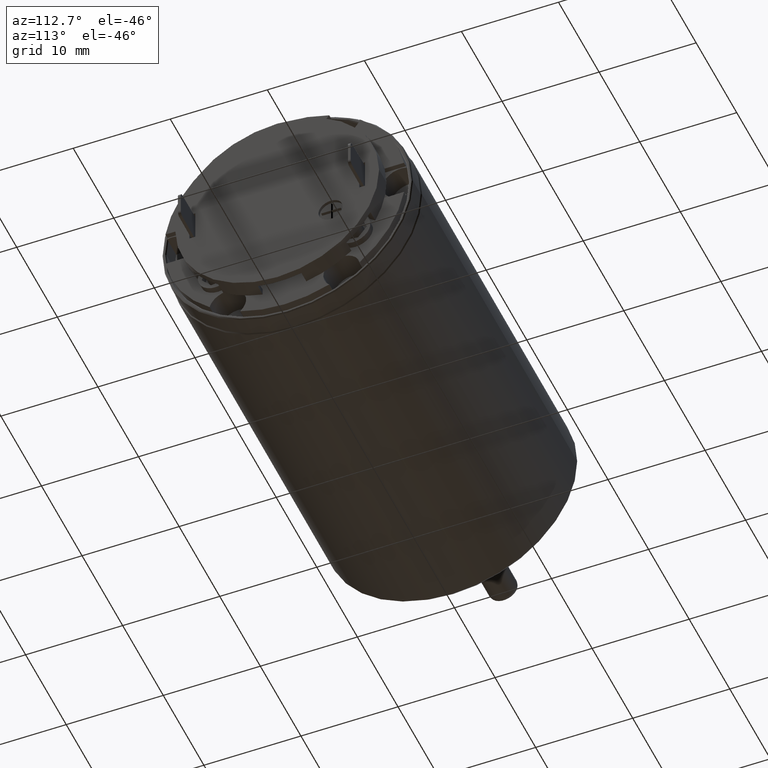
[diagram: clean part render]
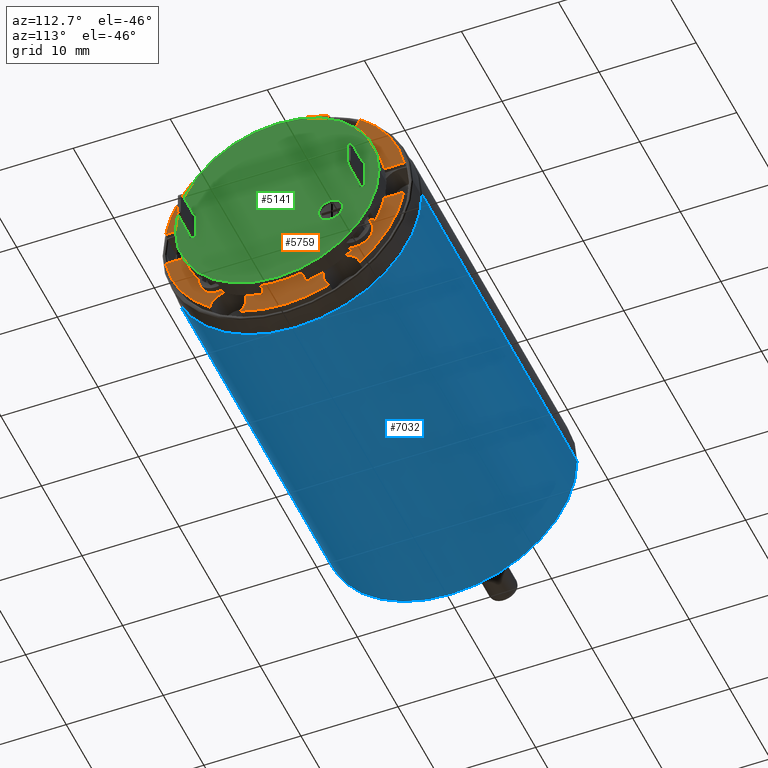
[diagram: same view with three faces highlighted in distinct colors, each labeled with its STEP entity id]
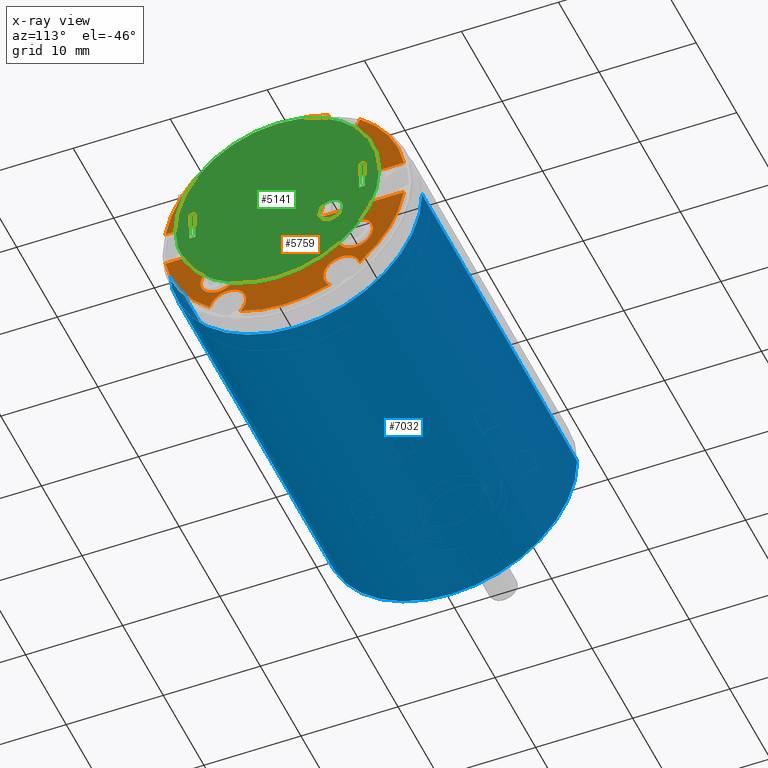
[diagram: x-ray of the same camera — body ghosted, the three highlighted faces saturated]
A machine part, auxiliary view with three faces highlighted in distinct colors.
The next image is the same camera in x-ray (body ghosted, the three faces saturated) — at least one of them is partly hidden behind the body in this view.
Their STEP definitions:

[orange] entity #5759 — the highlighted planar face has unit normal (1, 0, 0).
#881=CARTESIAN_POINT('',(2.180271496615E1,5.875E0,1.017579849447E1));
#882=DIRECTION('',(1.E0,0.E0,0.E0));
#883=DIRECTION('',(0.E0,-6.772588906651E-1,7.357447893224E-1));
#884=AXIS2_PLACEMENT_3D('',#881,#882,#883);
#886=CARTESIAN_POINT('',(2.180271496615E1,5.875E0,1.017579849447E1));
#887=DIRECTION('',(1.E0,0.E0,0.E0));
#888=DIRECTION('',(0.E0,8.660254037837E-1,-5.000000000013E-1));
#889=AXIS2_PLACEMENT_3D('',#886,#887,#888);
#891=CARTESIAN_POINT('',(2.180271496615E1,0.E0,0.E0));
#892=DIRECTION('',(-1.E0,0.E0,0.E0));
#893=DIRECTION('',(0.E0,6.208052959691E-1,7.839647852402E-1));
#894=AXIS2_PLACEMENT_3D('',#891,#892,#893);
#896=CARTESIAN_POINT('',(2.180271496615E1,0.E0,0.E0));
#897=DIRECTION('',(-1.E0,0.E0,0.E0));
#898=DIRECTION('',(0.E0,8.660254037845E-1,5.E-1));
#899=AXIS2_PLACEMENT_3D('',#896,#897,#898);
#901=DIRECTION('',(0.E0,1.E0,1.416684004250E-14));
#902=VECTOR('',#901,8.824205835442E0);
#903=CARTESIAN_POINT('',(2.180271496615E1,3.464101615138E0,-2.E0));
#904=LINE('',#903,#902);
#905=CARTESIAN_POINT('',(2.180271496615E1,0.E0,0.E0));
#906=DIRECTION('',(-1.E0,0.E0,0.E0));
#907=DIRECTION('',(0.E0,9.870126466330E-1,-1.606425702811E-1));
#908=AXIS2_PLACEMENT_3D('',#905,#906,#907);
#910=CARTESIAN_POINT('',(2.180271496615E1,5.875E0,-1.017579849447E1));
#911=DIRECTION('',(1.E0,0.E0,0.E0));
#912=DIRECTION('',(0.E0,9.758031235875E-1,2.186510095950E-1));
#913=AXIS2_PLACEMENT_3D('',#910,#911,#912);
#915=CARTESIAN_POINT('',(2.180271496615E1,5.875E0,-1.017579849447E1));
#916=DIRECTION('',(1.E0,0.E0,0.E0));
#917=DIRECTION('',(0.E0,-8.660254037844E-1,-5.000000000001E-1));
#918=AXIS2_PLACEMENT_3D('',#915,#916,#917);
#920=CARTESIAN_POINT('',(2.180271496615E1,0.E0,0.E0));
#921=DIRECTION('',(-1.E0,0.E0,0.E0));
#922=DIRECTION('',(0.E0,3.685307717057E-1,-9.296155497333E-1));
#923=AXIS2_PLACEMENT_3D('',#920,#921,#922);
#925=CARTESIAN_POINT('',(2.180271496615E1,-5.875E0,-1.017579849447E1));
#926=DIRECTION('',(1.E0,0.E0,0.E0));
#927=DIRECTION('',(0.E0,6.772588906658E-1,-7.357447893217E-1));
#928=AXIS2_PLACEMENT_3D('',#925,#926,#927);
#930=CARTESIAN_POINT('',(2.180271496615E1,-5.875E0,-1.017579849447E1));
#931=DIRECTION('',(1.E0,0.E0,0.E0));
#932=DIRECTION('',(0.E0,-8.660254037837E-1,5.000000000013E-1));
#933=AXIS2_PLACEMENT_3D('',#930,#931,#932);
#935=CARTESIAN_POINT('',(2.180271496615E1,0.E0,0.E0));
#936=DIRECTION('',(-1.E0,0.E0,0.E0));
#937=DIRECTION('',(0.E0,-6.208052959691E-1,-7.839647852402E-1));
#938=AXIS2_PLACEMENT_3D('',#935,#936,#937);
#940=CARTESIAN_POINT('',(2.180271496615E1,0.E0,0.E0));
#941=DIRECTION('',(-1.E0,0.E0,0.E0));
#942=DIRECTION('',(0.E0,-8.660254037845E-1,-5.E-1));
#943=AXIS2_PLACEMENT_3D('',#940,#941,#942);
#945=CARTESIAN_POINT('',(2.180271496615E1,0.E0,0.E0));
#946=DIRECTION('',(-1.E0,0.E0,0.E0));
#947=DIRECTION('',(0.E0,-1.E0,0.E0));
#948=AXIS2_PLACEMENT_3D('',#945,#946,#947);
#950=CARTESIAN_POINT('',(2.180271496615E1,0.E0,0.E0));
#951=DIRECTION('',(-1.E0,0.E0,0.E0));
#952=DIRECTION('',(0.E0,-9.870126466330E-1,1.606425702811E-1));
#953=AXIS2_PLACEMENT_3D('',#950,#951,#952);
#955=CARTESIAN_POINT('',(2.180271496615E1,-5.875E0,1.017579849447E1));
#956=DIRECTION('',(1.E0,0.E0,0.E0));
#957=DIRECTION('',(0.E0,-9.758031235875E-1,-2.186510095950E-1));
#958=AXIS2_PLACEMENT_3D('',#955,#956,#957);
#960=CARTESIAN_POINT('',(2.180271496615E1,-5.875E0,1.017579849447E1));
#961=DIRECTION('',(1.E0,0.E0,0.E0));
#962=DIRECTION('',(0.E0,8.660254037844E-1,5.000000000001E-1));
#963=AXIS2_PLACEMENT_3D('',#960,#961,#962);
#965=CARTESIAN_POINT('',(2.180271496615E1,0.E0,0.E0));
#966=DIRECTION('',(-1.E0,0.E0,0.E0));
#967=DIRECTION('',(0.E0,-3.685307717057E-1,9.296155497333E-1));
#968=AXIS2_PLACEMENT_3D('',#965,#966,#967);
#970=CARTESIAN_POINT('',(2.180271496615E1,7.29E0,-5.7E0));
#971=DIRECTION('',(1.E0,0.E0,0.E0));
#972=DIRECTION('',(0.E0,0.E0,-1.E0));
#973=AXIS2_PLACEMENT_3D('',#970,#971,#972);
#975=CARTESIAN_POINT('',(2.180271496615E1,7.29E0,-5.7E0));
#976=DIRECTION('',(1.E0,0.E0,0.E0));
#977=DIRECTION('',(0.E0,0.E0,1.E0));
#978=AXIS2_PLACEMENT_3D('',#975,#976,#977);
#980=CARTESIAN_POINT('',(2.180271496615E1,-6.87E0,-6.19E0));
#981=DIRECTION('',(1.E0,0.E0,0.E0));
#982=DIRECTION('',(0.E0,0.E0,-1.E0));
#983=AXIS2_PLACEMENT_3D('',#980,#981,#982);
#985=CARTESIAN_POINT('',(2.180271496615E1,-6.87E0,-6.19E0));
#986=DIRECTION('',(1.E0,0.E0,0.E0));
#987=DIRECTION('',(0.E0,0.E0,1.E0));
#988=AXIS2_PLACEMENT_3D('',#985,#986,#987);
#990=CARTESIAN_POINT('',(2.180271496615E1,-7.29E0,5.7E0));
#991=DIRECTION('',(1.E0,0.E0,0.E0));
#992=DIRECTION('',(0.E0,0.E0,-1.E0));
#993=AXIS2_PLACEMENT_3D('',#990,#991,#992);
#995=CARTESIAN_POINT('',(2.180271496615E1,-7.29E0,5.7E0));
#996=DIRECTION('',(1.E0,0.E0,0.E0));
#997=DIRECTION('',(0.E0,0.E0,1.E0));
#998=AXIS2_PLACEMENT_3D('',#995,#996,#997);
#1000=CARTESIAN_POINT('',(2.180271496615E1,6.87E0,6.19E0));
#1001=DIRECTION('',(1.E0,0.E0,0.E0));
#1002=DIRECTION('',(0.E0,0.E0,-1.E0));
#1003=AXIS2_PLACEMENT_3D('',#1000,#1001,#1002);
#1005=CARTESIAN_POINT('',(2.180271496615E1,6.87E0,6.19E0));
#1006=DIRECTION('',(1.E0,0.E0,0.E0));
#1007=DIRECTION('',(0.E0,0.E0,1.E0));
#1008=AXIS2_PLACEMENT_3D('',#1005,#1006,#1007);
#1010=CARTESIAN_POINT('',(2.180271496615E1,5.E0,3.3E0));
#1011=DIRECTION('',(1.E0,0.E0,0.E0));
#1012=DIRECTION('',(0.E0,0.E0,-1.E0));
#1013=AXIS2_PLACEMENT_3D('',#1010,#1011,#1012);
#1015=CARTESIAN_POINT('',(2.180271496615E1,5.E0,3.3E0));
#1016=DIRECTION('',(1.E0,0.E0,0.E0));
#1017=DIRECTION('',(0.E0,0.E0,1.E0));
#1018=AXIS2_PLACEMENT_3D('',#1015,#1016,#1017);
#1020=CARTESIAN_POINT('',(2.180271496615E1,0.E0,0.E0));
#1021=DIRECTION('',(-1.E0,0.E0,0.E0));
#1022=DIRECTION('',(0.E0,1.E0,0.E0));
#1023=AXIS2_PLACEMENT_3D('',#1020,#1021,#1022);
#1025=CARTESIAN_POINT('',(2.180271496615E1,0.E0,0.E0));
#1026=DIRECTION('',(-1.E0,0.E0,0.E0));
#1027=DIRECTION('',(0.E0,-1.E0,0.E0));
#1028=AXIS2_PLACEMENT_3D('',#1025,#1026,#1027);
#1392=DIRECTION('',(0.E0,1.E0,0.E0));
#1393=VECTOR('',#1392,8.824205835442E0);
#1394=CARTESIAN_POINT('',(2.180271496615E1,-1.228830745058E1,2.E0));
#1395=LINE('',#1394,#1393);
#1412=DIRECTION('',(0.E0,-1.E0,0.E0));
#1413=VECTOR('',#1412,8.824205835443E0);
#1414=CARTESIAN_POINT('',(2.180271496615E1,-3.464101615138E0,-2.E0));
#1415=LINE('',#1414,#1413);
#1600=DIRECTION('',(0.E0,1.E0,0.E0));
#1601=VECTOR('',#1600,8.824205835443E0);
#1602=CARTESIAN_POINT('',(2.180271496615E1,3.464101615138E0,2.E0));
#1603=LINE('',#1602,#1601);
#3782=CARTESIAN_POINT('',(2.180271496615E1,-1.228830745058E1,-2.E0));
#3783=VERTEX_POINT('',#3782);
#3784=CARTESIAN_POINT('',(2.180271496615E1,-7.729025934815E0,
-9.760361576240E0));
#3785=VERTEX_POINT('',#3784);
#3794=CARTESIAN_POINT('',(2.180271496615E1,-4.588208107736E0,
-1.157371359418E1));
#3795=VERTEX_POINT('',#3794);
#3796=CARTESIAN_POINT('',(2.180271496615E1,4.588208107735E0,-1.157371359418E1));
#3797=VERTEX_POINT('',#3796);
#3806=CARTESIAN_POINT('',(2.180271496615E1,7.729025934817E0,-9.760361576240E0));
#3807=VERTEX_POINT('',#3806);
#3808=CARTESIAN_POINT('',(2.180271496615E1,1.228830745058E1,-2.E0));
#3809=VERTEX_POINT('',#3808);
#3854=CARTESIAN_POINT('',(2.180271496615E1,1.228830745058E1,2.E0));
#3855=VERTEX_POINT('',#3854);
#3856=CARTESIAN_POINT('',(2.180271496615E1,7.729025934815E0,9.760361576240E0));
#3857=VERTEX_POINT('',#3856);
#3866=CARTESIAN_POINT('',(2.180271496615E1,4.588208107736E0,1.157371359418E1));
#3867=VERTEX_POINT('',#3866);
#3868=CARTESIAN_POINT('',(2.180271496615E1,-4.588208107735E0,1.157371359418E1));
#3869=VERTEX_POINT('',#3868);
#3878=CARTESIAN_POINT('',(2.180271496615E1,-7.729025934817E0,9.760361576240E0));
#3879=VERTEX_POINT('',#3878);
#3880=CARTESIAN_POINT('',(2.180271496615E1,-1.228830745058E1,2.E0));
#3881=VERTEX_POINT('',#3880);
#3932=CARTESIAN_POINT('',(2.180271496615E1,6.87E0,4.39E0));
#3933=CARTESIAN_POINT('',(2.180271496615E1,6.87E0,7.99E0));
#3934=VERTEX_POINT('',#3932);
#3935=VERTEX_POINT('',#3933);
#3936=CARTESIAN_POINT('',(2.180271496615E1,7.29E0,-7.5E0));
#3937=CARTESIAN_POINT('',(2.180271496615E1,7.29E0,-3.9E0));
#3938=VERTEX_POINT('',#3936);
#3939=VERTEX_POINT('',#3937);
#3940=CARTESIAN_POINT('',(2.180271496615E1,-6.87E0,-7.99E0));
#3941=CARTESIAN_POINT('',(2.180271496615E1,-6.87E0,-4.39E0));
#3942=VERTEX_POINT('',#3940);
#3943=VERTEX_POINT('',#3941);
#3944=CARTESIAN_POINT('',(2.180271496615E1,-7.29E0,3.9E0));
#3945=CARTESIAN_POINT('',(2.180271496615E1,-7.29E0,7.5E0));
#3946=VERTEX_POINT('',#3944);
#3947=VERTEX_POINT('',#3945);
#3948=CARTESIAN_POINT('',(2.180271496615E1,7.520448267190E0,9.225798494467E0));
#3949=VERTEX_POINT('',#3948);
#3950=CARTESIAN_POINT('',(2.180271496615E1,3.464101615138E0,2.E0));
#3951=VERTEX_POINT('',#3950);
#3952=CARTESIAN_POINT('',(2.180271496615E1,3.464101615138E0,-2.E0));
#3953=VERTEX_POINT('',#3952);
#3954=CARTESIAN_POINT('',(2.180271496615E1,4.229551732810E0,-1.112579849447E1));
#3955=VERTEX_POINT('',#3954);
#3956=CARTESIAN_POINT('',(2.180271496615E1,-7.520448267190E0,
-9.225798494467E0));
#3957=VERTEX_POINT('',#3956);
#3958=CARTESIAN_POINT('',(2.180271496615E1,-3.464101615138E0,-2.E0));
#3959=VERTEX_POINT('',#3958);
#3960=CARTESIAN_POINT('',(2.180271496615E1,-4.E0,0.E0));
#3961=VERTEX_POINT('',#3960);
#3962=CARTESIAN_POINT('',(2.180271496615E1,-3.464101615138E0,2.E0));
#3963=VERTEX_POINT('',#3962);
#3964=CARTESIAN_POINT('',(2.180271496615E1,-4.229551732810E0,1.112579849447E1));
#3965=VERTEX_POINT('',#3964);
#3966=CARTESIAN_POINT('',(2.180271496615E1,5.E0,2.3E0));
#3967=CARTESIAN_POINT('',(2.180271496615E1,5.E0,4.3E0));
#3968=VERTEX_POINT('',#3966);
#3969=VERTEX_POINT('',#3967);
#4510=CARTESIAN_POINT('',(2.180271496615E1,3.9E0,0.E0));
#4511=CARTESIAN_POINT('',(2.180271496615E1,-3.9E0,0.E0));
#4512=VERTEX_POINT('',#4510);
#4513=VERTEX_POINT('',#4511);
#5675=CARTESIAN_POINT('',(2.180271496615E1,1.598721155460E-14,0.E0));
#5676=DIRECTION('',(1.E0,0.E0,0.E0));
#5677=DIRECTION('',(0.E0,1.E0,0.E0));
#5678=AXIS2_PLACEMENT_3D('',#5675,#5676,#5677);
#5679=PLANE('',#5678);
#5681=ORIENTED_EDGE('',*,*,#5680,.T.);
#5683=ORIENTED_EDGE('',*,*,#5682,.T.);
#5685=ORIENTED_EDGE('',*,*,#5684,.T.);
#5687=ORIENTED_EDGE('',*,*,#5686,.F.);
#5689=ORIENTED_EDGE('',*,*,#5688,.T.);
#5691=ORIENTED_EDGE('',*,*,#5690,.T.);
#5693=ORIENTED_EDGE('',*,*,#5692,.T.);
#5695=ORIENTED_EDGE('',*,*,#5694,.T.);
#5697=ORIENTED_EDGE('',*,*,#5696,.T.);
#5699=ORIENTED_EDGE('',*,*,#5698,.T.);
#5701=ORIENTED_EDGE('',*,*,#5700,.T.);
#5703=ORIENTED_EDGE('',*,*,#5702,.T.);
#5705=ORIENTED_EDGE('',*,*,#5704,.T.);
#5707=ORIENTED_EDGE('',*,*,#5706,.F.);
#5709=ORIENTED_EDGE('',*,*,#5708,.T.);
#5711=ORIENTED_EDGE('',*,*,#5710,.T.);
#5713=ORIENTED_EDGE('',*,*,#5712,.F.);
#5715=ORIENTED_EDGE('',*,*,#5714,.T.);
#5717=ORIENTED_EDGE('',*,*,#5716,.T.);
#5719=ORIENTED_EDGE('',*,*,#5718,.T.);
#5721=ORIENTED_EDGE('',*,*,#5720,.T.);
#5722=EDGE_LOOP('',(#5681,#5683,#5685,#5687,#5689,#5691,#5693,#5695,#5697,#5699,
#5701,#5703,#5705,#5707,#5709,#5711,#5713,#5715,#5717,#5719,#5721));
#5723=FACE_OUTER_BOUND('',#5722,.F.);
#5725=ORIENTED_EDGE('',*,*,#5724,.T.);
#5727=ORIENTED_EDGE('',*,*,#5726,.T.);
#5728=EDGE_LOOP('',(#5725,#5727));
#5729=FACE_BOUND('',#5728,.F.);
#5731=ORIENTED_EDGE('',*,*,#5730,.T.);
#5733=ORIENTED_EDGE('',*,*,#5732,.T.);
#5734=EDGE_LOOP('',(#5731,#5733));
#5735=FACE_BOUND('',#5734,.F.);
#5737=ORIENTED_EDGE('',*,*,#5736,.T.);
#5739=ORIENTED_EDGE('',*,*,#5738,.T.);
#5740=EDGE_LOOP('',(#5737,#5739));
#5741=FACE_BOUND('',#5740,.F.);
#5743=ORIENTED_EDGE('',*,*,#5742,.T.);
#5745=ORIENTED_EDGE('',*,*,#5744,.T.);
#5746=EDGE_LOOP('',(#5743,#5745));
#5747=FACE_BOUND('',#5746,.F.);
#5749=ORIENTED_EDGE('',*,*,#5748,.T.);
#5751=ORIENTED_EDGE('',*,*,#5750,.T.);
#5752=EDGE_LOOP('',(#5749,#5751));
#5753=FACE_BOUND('',#5752,.F.);
#5755=ORIENTED_EDGE('',*,*,#5754,.F.);
#5756=ORIENTED_EDGE('',*,*,#5665,.F.);
#5757=EDGE_LOOP('',(#5755,#5756));
#5758=FACE_BOUND('',#5757,.F.);
#5759=ADVANCED_FACE('',(#5723,#5729,#5735,#5741,#5747,#5753,#5758),#5679,.T.);
#885=CIRCLE('',#884,1.900000000001E0);
#890=CIRCLE('',#889,1.900000000001E0);
#895=CIRCLE('',#894,1.245E1);
#900=CIRCLE('',#899,4.E0);
#909=CIRCLE('',#908,1.245E1);
#914=CIRCLE('',#913,1.9E0);
#919=CIRCLE('',#918,1.9E0);
#924=CIRCLE('',#923,1.245E1);
#929=CIRCLE('',#928,1.900000000001E0);
#934=CIRCLE('',#933,1.900000000001E0);
#939=CIRCLE('',#938,1.245E1);
#944=CIRCLE('',#943,4.E0);
#949=CIRCLE('',#948,4.E0);
#954=CIRCLE('',#953,1.245E1);
#959=CIRCLE('',#958,1.9E0);
#964=CIRCLE('',#963,1.9E0);
#969=CIRCLE('',#968,1.245E1);
#974=CIRCLE('',#973,1.8E0);
#979=CIRCLE('',#978,1.8E0);
#984=CIRCLE('',#983,1.8E0);
#989=CIRCLE('',#988,1.8E0);
#994=CIRCLE('',#993,1.8E0);
#999=CIRCLE('',#998,1.8E0);
#1004=CIRCLE('',#1003,1.8E0);
#1009=CIRCLE('',#1008,1.8E0);
#1014=CIRCLE('',#1013,1.E0);
#1019=CIRCLE('',#1018,1.E0);
#1024=CIRCLE('',#1023,3.9E0);
#1029=CIRCLE('',#1028,3.9E0);
#5665=EDGE_CURVE('',#4513,#4512,#1029,.T.);
#5680=EDGE_CURVE('',#3867,#3949,#885,.T.);
#5682=EDGE_CURVE('',#3949,#3857,#890,.T.);
#5684=EDGE_CURVE('',#3857,#3855,#895,.T.);
#5686=EDGE_CURVE('',#3951,#3855,#1603,.T.);
#5688=EDGE_CURVE('',#3951,#3953,#900,.T.);
#5690=EDGE_CURVE('',#3953,#3809,#904,.T.);
#5692=EDGE_CURVE('',#3809,#3807,#909,.T.);
#5694=EDGE_CURVE('',#3807,#3955,#914,.T.);
#5696=EDGE_CURVE('',#3955,#3797,#919,.T.);
#5698=EDGE_CURVE('',#3797,#3795,#924,.T.);
#5700=EDGE_CURVE('',#3795,#3957,#929,.T.);
#5702=EDGE_CURVE('',#3957,#3785,#934,.T.);
#5704=EDGE_CURVE('',#3785,#3783,#939,.T.);
#5706=EDGE_CURVE('',#3959,#3783,#1415,.T.);
#5708=EDGE_CURVE('',#3959,#3961,#944,.T.);
#5710=EDGE_CURVE('',#3961,#3963,#949,.T.);
#5712=EDGE_CURVE('',#3881,#3963,#1395,.T.);
#5714=EDGE_CURVE('',#3881,#3879,#954,.T.);
#5716=EDGE_CURVE('',#3879,#3965,#959,.T.);
#5718=EDGE_CURVE('',#3965,#3869,#964,.T.);
#5720=EDGE_CURVE('',#3869,#3867,#969,.T.);
#5724=EDGE_CURVE('',#3938,#3939,#974,.T.);
#5726=EDGE_CURVE('',#3939,#3938,#979,.T.);
#5730=EDGE_CURVE('',#3942,#3943,#984,.T.);
#5732=EDGE_CURVE('',#3943,#3942,#989,.T.);
#5736=EDGE_CURVE('',#3946,#3947,#994,.T.);
#5738=EDGE_CURVE('',#3947,#3946,#999,.T.);
#5742=EDGE_CURVE('',#3934,#3935,#1004,.T.);
#5744=EDGE_CURVE('',#3935,#3934,#1009,.T.);
#5748=EDGE_CURVE('',#3968,#3969,#1014,.T.);
#5750=EDGE_CURVE('',#3969,#3968,#1019,.T.);
#5754=EDGE_CURVE('',#4512,#4513,#1024,.T.);

[blue] entity #7032 — the highlighted cylindrical surface (partial cylindrical patch) has radius 13 mm, axis along (1, 0, 0).
#2031=CARTESIAN_POINT('',(1.905E1,0.E0,0.E0));
#2032=DIRECTION('',(1.E0,0.E0,0.E0));
#2033=DIRECTION('',(0.E0,-1.E0,0.E0));
#2034=AXIS2_PLACEMENT_3D('',#2031,#2032,#2033);
#2036=CARTESIAN_POINT('',(-1.915000171831E1,1.865174681370E-14,
-1.931788062848E-14));
#2037=DIRECTION('',(1.E0,0.E0,0.E0));
#2038=DIRECTION('',(0.E0,-1.E0,0.E0));
#2039=AXIS2_PLACEMENT_3D('',#2036,#2037,#2038);
#2041=CARTESIAN_POINT('',(-1.915000171831E1,1.865174681370E-14,
-1.931788062848E-14));
#2042=DIRECTION('',(1.E0,0.E0,0.E0));
#2043=DIRECTION('',(0.E0,0.E0,-1.E0));
#2044=AXIS2_PLACEMENT_3D('',#2041,#2042,#2043);
#2174=DIRECTION('',(1.E0,-4.586528150276E-8,-1.146006685513E-11));
#2175=VECTOR('',#2174,3.819999996626E1);
#2176=CARTESIAN_POINT('',(-1.914999996626E1,1.300000175205E1,
7.675372883947E-10));
#2177=LINE('',#2176,#2175);
#2183=DIRECTION('',(-1.E0,-4.586528136325E-8,-2.009262342875E-11));
#2184=VECTOR('',#2183,3.819999996626E1);
#2185=CARTESIAN_POINT('',(1.905E1,-1.3E1,0.E0));
#2186=LINE('',#2185,#2184);
#3588=CARTESIAN_POINT('',(1.905E1,1.3E1,3.297627349154E-10));
#3589=VERTEX_POINT('',#3588);
#3590=CARTESIAN_POINT('',(1.905E1,-1.3E1,0.E0));
#3591=VERTEX_POINT('',#3590);
#3592=CARTESIAN_POINT('',(-1.915000171831E1,2.229661964214E-14,
-1.300000409944E1));
#3593=CARTESIAN_POINT('',(-1.915000171831E1,1.300000409944E1,0.E0));
#3594=VERTEX_POINT('',#3592);
#3595=VERTEX_POINT('',#3593);
#3596=CARTESIAN_POINT('',(-1.915000171831E1,-1.300000409944E1,0.E0));
#3597=VERTEX_POINT('',#3596);
#7016=CARTESIAN_POINT('',(-1.991400896407E1,0.E0,0.E0));
#7017=DIRECTION('',(1.E0,0.E0,0.E0));
#7018=DIRECTION('',(0.E0,-1.E0,0.E0));
#7019=AXIS2_PLACEMENT_3D('',#7016,#7017,#7018);
#7020=CYLINDRICAL_SURFACE('',#7019,1.3E1);
#7022=ORIENTED_EDGE('',*,*,#7021,.F.);
#7024=ORIENTED_EDGE('',*,*,#7023,.F.);
#7026=ORIENTED_EDGE('',*,*,#7025,.F.);
#7027=ORIENTED_EDGE('',*,*,#7009,.T.);
#7029=ORIENTED_EDGE('',*,*,#7028,.F.);
#7030=EDGE_LOOP('',(#7022,#7024,#7026,#7027,#7029));
#7031=FACE_OUTER_BOUND('',#7030,.F.);
#7032=ADVANCED_FACE('',(#7031),#7020,.T.);
#2035=CIRCLE('',#2034,1.3E1);
#2040=CIRCLE('',#2039,1.300000409944E1);
#2045=CIRCLE('',#2044,1.300000409944E1);
#7009=EDGE_CURVE('',#3591,#3589,#2035,.T.);
#7021=EDGE_CURVE('',#3594,#3595,#2045,.T.);
#7023=EDGE_CURVE('',#3597,#3594,#2040,.T.);
#7025=EDGE_CURVE('',#3591,#3597,#2186,.T.);
#7028=EDGE_CURVE('',#3595,#3589,#2177,.T.);

[green] entity #5141 — the highlighted planar face has unit normal (1, 0, 0).
#505=CARTESIAN_POINT('',(2.365271496615E1,0.E0,0.E0));
#506=DIRECTION('',(-1.E0,0.E0,0.E0));
#507=DIRECTION('',(0.E0,1.E0,0.E0));
#508=AXIS2_PLACEMENT_3D('',#505,#506,#507);
#510=CARTESIAN_POINT('',(2.365271496615E1,0.E0,0.E0));
#511=DIRECTION('',(-1.E0,0.E0,0.E0));
#512=DIRECTION('',(0.E0,-1.E0,0.E0));
#513=AXIS2_PLACEMENT_3D('',#510,#511,#512);
#515=DIRECTION('',(1.184237892934E-14,-1.E0,0.E0));
#516=VECTOR('',#515,6.E-1);
#517=CARTESIAN_POINT('',(2.365271496615E1,9.05E0,1.6E0));
#518=LINE('',#517,#516);
#519=DIRECTION('',(0.E0,0.E0,-1.E0));
#520=VECTOR('',#519,3.2E0);
#521=CARTESIAN_POINT('',(2.365271496615E1,8.45E0,1.6E0));
#522=LINE('',#521,#520);
#523=DIRECTION('',(0.E0,1.E0,0.E0));
#524=VECTOR('',#523,6.E-1);
#525=CARTESIAN_POINT('',(2.365271496615E1,8.45E0,-1.6E0));
#526=LINE('',#525,#524);
#527=DIRECTION('',(0.E0,0.E0,1.E0));
#528=VECTOR('',#527,3.2E0);
#529=CARTESIAN_POINT('',(2.365271496615E1,9.05E0,-1.6E0));
#530=LINE('',#529,#528);
#531=CARTESIAN_POINT('',(2.365271496615E1,5.5E0,-3.5E0));
#532=DIRECTION('',(1.E0,0.E0,0.E0));
#533=DIRECTION('',(0.E0,0.E0,-1.E0));
#534=AXIS2_PLACEMENT_3D('',#531,#532,#533);
#536=CARTESIAN_POINT('',(2.365271496615E1,5.5E0,-3.5E0));
#537=DIRECTION('',(1.E0,0.E0,0.E0));
#538=DIRECTION('',(0.E0,0.E0,1.E0));
#539=AXIS2_PLACEMENT_3D('',#536,#537,#538);
#597=DIRECTION('',(0.E0,0.E0,1.E0));
#598=VECTOR('',#597,3.2E0);
#599=CARTESIAN_POINT('',(2.365271496615E1,-9.05E0,-1.6E0));
#600=LINE('',#599,#598);
#621=DIRECTION('',(-1.184237892934E-14,1.E0,0.E0));
#622=VECTOR('',#621,6.E-1);
#623=CARTESIAN_POINT('',(2.365271496615E1,-9.05E0,1.6E0));
#624=LINE('',#623,#622);
#633=DIRECTION('',(0.E0,0.E0,-1.E0));
#634=VECTOR('',#633,3.2E0);
#635=CARTESIAN_POINT('',(2.365271496615E1,-8.45E0,1.6E0));
#636=LINE('',#635,#634);
#665=DIRECTION('',(0.E0,-1.E0,0.E0));
#666=VECTOR('',#665,6.E-1);
#667=CARTESIAN_POINT('',(2.365271496615E1,-8.45E0,-1.6E0));
#668=LINE('',#667,#666);
#4268=CARTESIAN_POINT('',(2.365271496615E1,9.05E0,-1.6E0));
#4269=VERTEX_POINT('',#4268);
#4270=CARTESIAN_POINT('',(2.365271496615E1,9.05E0,1.6E0));
#4271=VERTEX_POINT('',#4270);
#4276=CARTESIAN_POINT('',(2.365271496615E1,8.45E0,1.6E0));
#4277=VERTEX_POINT('',#4276);
#4278=CARTESIAN_POINT('',(2.365271496615E1,8.45E0,-1.6E0));
#4279=VERTEX_POINT('',#4278);
#4280=CARTESIAN_POINT('',(2.365271496615E1,1.05E1,0.E0));
#4281=CARTESIAN_POINT('',(2.365271496615E1,-1.05E1,0.E0));
#4282=VERTEX_POINT('',#4280);
#4283=VERTEX_POINT('',#4281);
#4284=CARTESIAN_POINT('',(2.365271496615E1,-9.05E0,-1.6E0));
#4285=CARTESIAN_POINT('',(2.365271496615E1,-9.05E0,1.6E0));
#4286=VERTEX_POINT('',#4284);
#4287=VERTEX_POINT('',#4285);
#4288=CARTESIAN_POINT('',(2.365271496615E1,-8.45E0,-1.6E0));
#4289=VERTEX_POINT('',#4288);
#4290=CARTESIAN_POINT('',(2.365271496615E1,-8.45E0,1.6E0));
#4291=VERTEX_POINT('',#4290);
#4292=CARTESIAN_POINT('',(2.365271496615E1,5.5E0,-4.75E0));
#4293=CARTESIAN_POINT('',(2.365271496615E1,5.5E0,-2.25E0));
#4294=VERTEX_POINT('',#4292);
#4295=VERTEX_POINT('',#4293);
#5106=CARTESIAN_POINT('',(2.365271496615E1,0.E0,0.E0));
#5107=DIRECTION('',(1.E0,0.E0,0.E0));
#5108=DIRECTION('',(0.E0,1.E0,0.E0));
#5109=AXIS2_PLACEMENT_3D('',#5106,#5107,#5108);
#5110=PLANE('',#5109);
#5111=ORIENTED_EDGE('',*,*,#4888,.T.);
#5112=ORIENTED_EDGE('',*,*,#4654,.T.);
#5113=EDGE_LOOP('',(#5111,#5112));
#5114=FACE_OUTER_BOUND('',#5113,.F.);
#5116=ORIENTED_EDGE('',*,*,#5115,.T.);
#5118=ORIENTED_EDGE('',*,*,#5117,.T.);
#5120=ORIENTED_EDGE('',*,*,#5119,.T.);
#5122=ORIENTED_EDGE('',*,*,#5121,.T.);
#5123=EDGE_LOOP('',(#5116,#5118,#5120,#5122));
#5124=FACE_BOUND('',#5123,.F.);
#5126=ORIENTED_EDGE('',*,*,#5125,.F.);
#5128=ORIENTED_EDGE('',*,*,#5127,.F.);
#5130=ORIENTED_EDGE('',*,*,#5129,.F.);
#5132=ORIENTED_EDGE('',*,*,#5131,.F.);
#5133=EDGE_LOOP('',(#5126,#5128,#5130,#5132));
#5134=FACE_BOUND('',#5133,.F.);
#5136=ORIENTED_EDGE('',*,*,#5135,.T.);
#5138=ORIENTED_EDGE('',*,*,#5137,.T.);
#5139=EDGE_LOOP('',(#5136,#5138));
#5140=FACE_BOUND('',#5139,.F.);
#5141=ADVANCED_FACE('',(#5114,#5124,#5134,#5140),#5110,.T.);
#509=CIRCLE('',#508,1.05E1);
#514=CIRCLE('',#513,1.05E1);
#535=CIRCLE('',#534,1.25E0);
#540=CIRCLE('',#539,1.25E0);
#4654=EDGE_CURVE('',#4283,#4282,#514,.T.);
#4888=EDGE_CURVE('',#4282,#4283,#509,.T.);
#5115=EDGE_CURVE('',#4271,#4277,#518,.T.);
#5117=EDGE_CURVE('',#4277,#4279,#522,.T.);
#5119=EDGE_CURVE('',#4279,#4269,#526,.T.);
#5121=EDGE_CURVE('',#4269,#4271,#530,.T.);
#5125=EDGE_CURVE('',#4286,#4287,#600,.T.);
#5127=EDGE_CURVE('',#4289,#4286,#668,.T.);
#5129=EDGE_CURVE('',#4291,#4289,#636,.T.);
#5131=EDGE_CURVE('',#4287,#4291,#624,.T.);
#5135=EDGE_CURVE('',#4294,#4295,#535,.T.);
#5137=EDGE_CURVE('',#4295,#4294,#540,.T.);